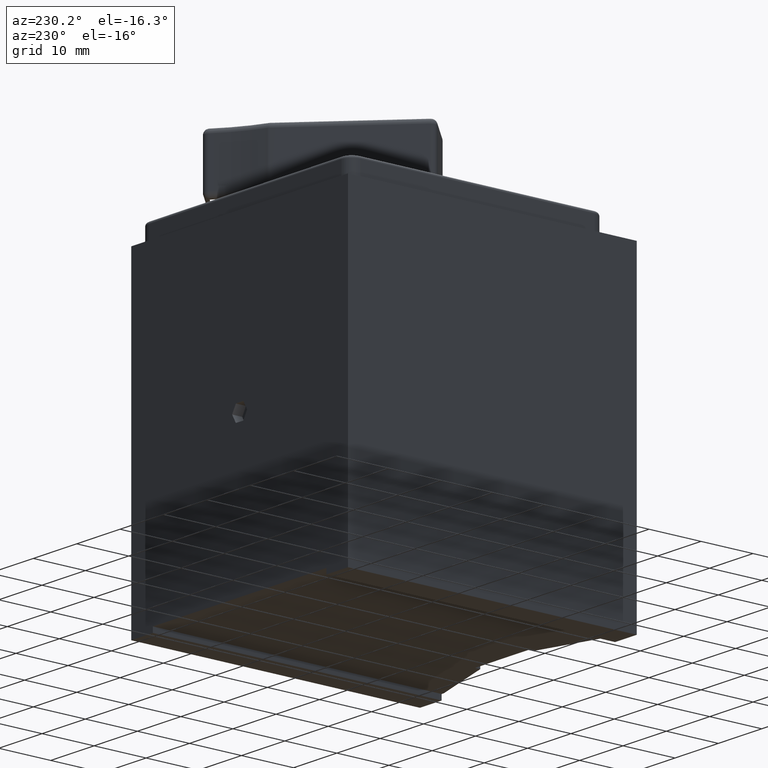
[diagram: clean part render]
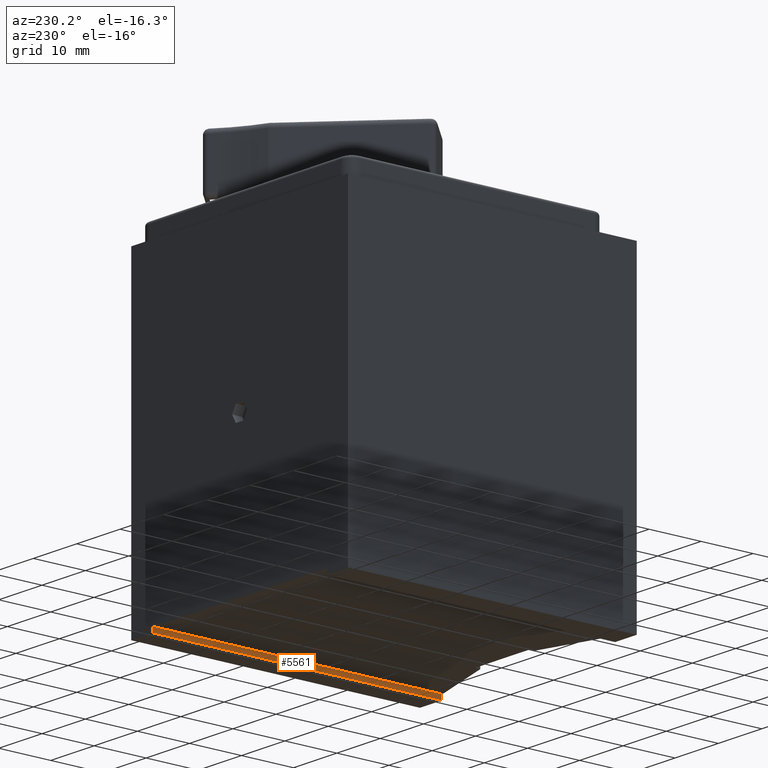
[diagram: same view with one face highlighted and labeled with its STEP entity id]
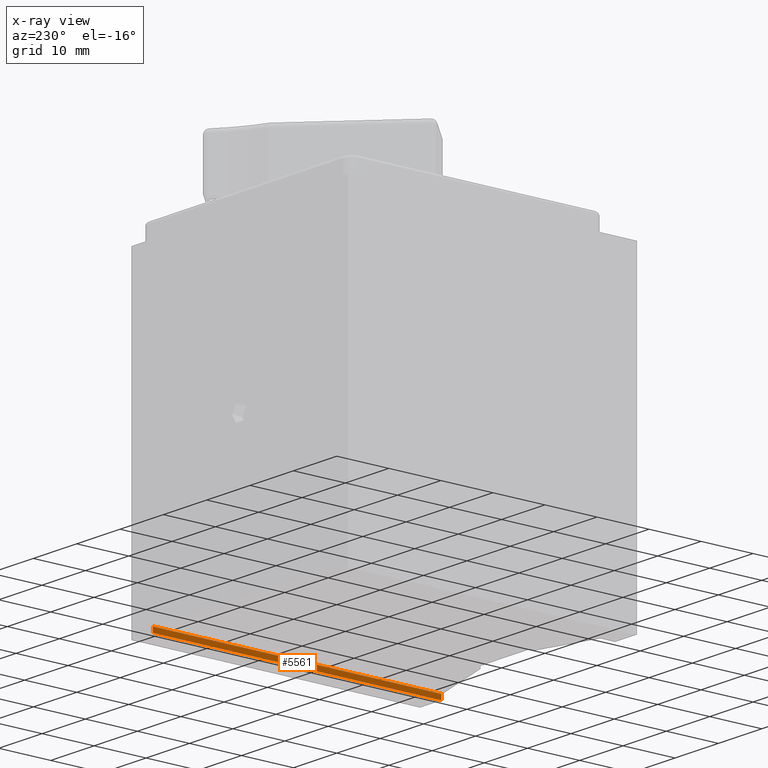
[diagram: x-ray of the same camera — body ghosted, the highlighted face saturated]
A machine part, auxiliary view. The second image highlights one B-rep face of the part: STEP entity #5561.
The next image is the same camera in x-ray: the body ghosted, the highlighted face saturated — about 0% of this face is hidden behind the body in this view.
In plain terms, the highlighted planar face has unit normal (1, 0, -0).
Its self-contained STEP definition (entity closure, byte-faithful):
#132 = LINE ( 'NONE', #5332, #1092 ) ;
#272 = ORIENTED_EDGE ( 'NONE', *, *, #332, .F. ) ;
#276 = DIRECTION ( 'NONE',  ( -0.0000000000000000000, -0.0000000000000000000, -1.000000000000000000 ) ) ;
#287 = AXIS2_PLACEMENT_3D ( 'NONE', #2197, #2783, #3157 ) ;
#332 = EDGE_CURVE ( 'NONE', #1650, #1491, #673, .T. ) ;
#338 = VERTEX_POINT ( 'NONE', #3867 ) ;
#606 = DIRECTION ( 'NONE',  ( -1.387778780781444200E-016, 1.000000000000000000, 0.0000000000000000000 ) ) ;
#673 = LINE ( 'NONE', #5257, #5770 ) ;
#1014 = LINE ( 'NONE', #4313, #4578 ) ;
#1092 = VECTOR ( 'NONE', #276, 1000.000000000000000 ) ;
#1377 = EDGE_CURVE ( 'NONE', #1491, #338, #1014, .T. ) ;
#1491 = VERTEX_POINT ( 'NONE', #2390 ) ;
#1546 = DIRECTION ( 'NONE',  ( -0.0000000000000000000, -0.0000000000000000000, -1.000000000000000000 ) ) ;
#1650 = VERTEX_POINT ( 'NONE', #2966 ) ;
#1714 = ORIENTED_EDGE ( 'NONE', *, *, #2734, .T. ) ;
#2169 = DIRECTION ( 'NONE',  ( -1.387778780781444200E-016, 1.000000000000000000, -0.0000000000000000000 ) ) ;
#2197 = CARTESIAN_POINT ( 'NONE',  ( 13.07474630655244700, -27.71065196765026400, 46.69999999997618500 ) ) ;
#2232 = VECTOR ( 'NONE', #2169, 1000.000000000000000 ) ;
#2390 = CARTESIAN_POINT ( 'NONE',  ( 13.07474630655244700, -27.71065196765026400, 47.69999999997618500 ) ) ;
#2511 = EDGE_LOOP ( 'NONE', ( #272, #1714, #4566, #3193 ) ) ;
#2734 = EDGE_CURVE ( 'NONE', #1650, #4049, #2742, .T. ) ;
#2742 = LINE ( 'NONE', #4006, #2232 ) ;
#2783 = DIRECTION ( 'NONE',  ( 1.000000000000000000, 1.387778780781444200E-016, -0.0000000000000000000 ) ) ;
#2966 = CARTESIAN_POINT ( 'NONE',  ( 13.07474630655244700, -27.71065196765026400, 48.69999999997617800 ) ) ;
#3157 = DIRECTION ( 'NONE',  ( -1.387778780781444200E-016, 1.000000000000000000, 0.0000000000000000000 ) ) ;
#3193 = ORIENTED_EDGE ( 'NONE', *, *, #1377, .F. ) ;
#3867 = CARTESIAN_POINT ( 'NONE',  ( 13.07474630655244000, 27.78934803234974300, 47.69999999997618500 ) ) ;
#4006 = CARTESIAN_POINT ( 'NONE',  ( 13.07474630655244700, -27.71065196765026400, 48.69999999997617800 ) ) ;
#4049 = VERTEX_POINT ( 'NONE', #4269 ) ;
#4269 = CARTESIAN_POINT ( 'NONE',  ( 13.07474630655244000, 27.78934803234974300, 48.69999999997617800 ) ) ;
#4313 = CARTESIAN_POINT ( 'NONE',  ( 13.07474630655244700, -19.89247014946846500, 47.69999999997618500 ) ) ;
#4566 = ORIENTED_EDGE ( 'NONE', *, *, #5458, .T. ) ;
#4578 = VECTOR ( 'NONE', #606, 1000.000000000000000 ) ;
#5092 = PLANE ( 'NONE',  #287 ) ;
#5257 = CARTESIAN_POINT ( 'NONE',  ( 13.07474630655244700, -27.71065196765026400, 46.69999999997618500 ) ) ;
#5332 = CARTESIAN_POINT ( 'NONE',  ( 13.07474630655244000, 27.78934803234974300, 46.69999999997618500 ) ) ;
#5458 = EDGE_CURVE ( 'NONE', #4049, #338, #132, .T. ) ;
#5561 = ADVANCED_FACE ( 'NONE', ( #5582 ), #5092, .F. ) ;
#5582 = FACE_OUTER_BOUND ( 'NONE', #2511, .T. ) ;
#5770 = VECTOR ( 'NONE', #1546, 1000.000000000000000 ) ;